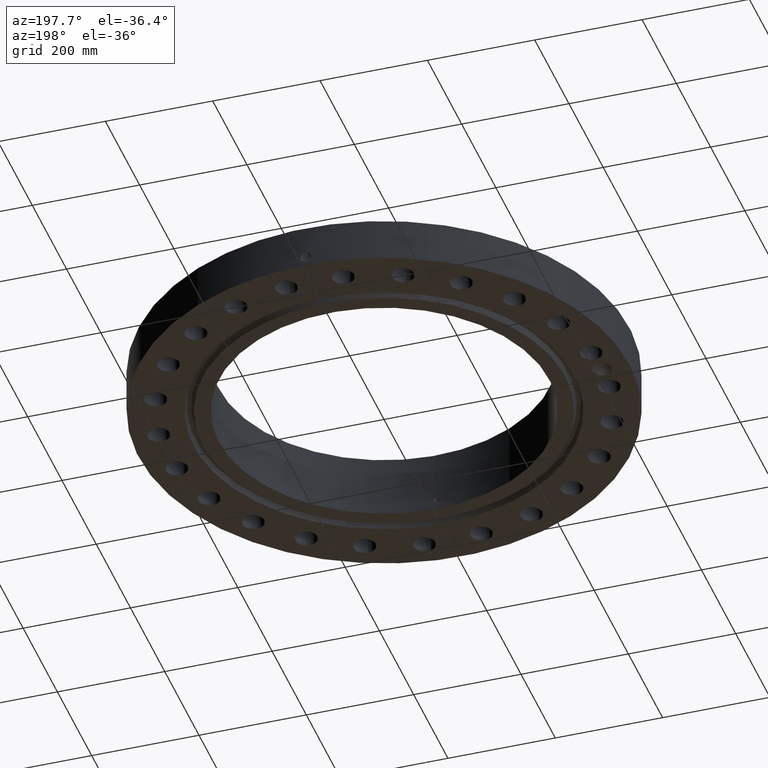
[diagram: clean part render]
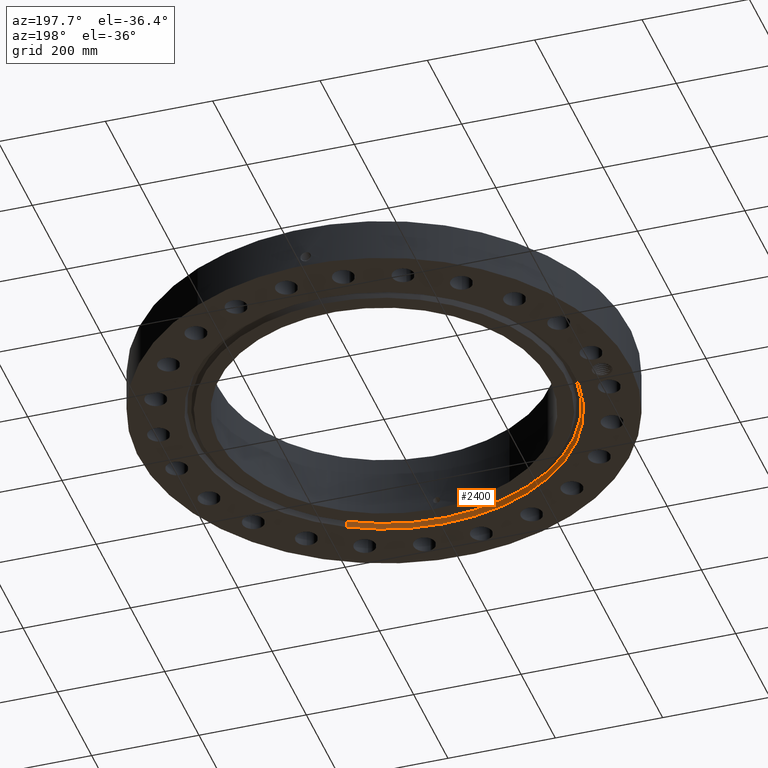
[diagram: same view with one face highlighted and labeled with its STEP entity id]
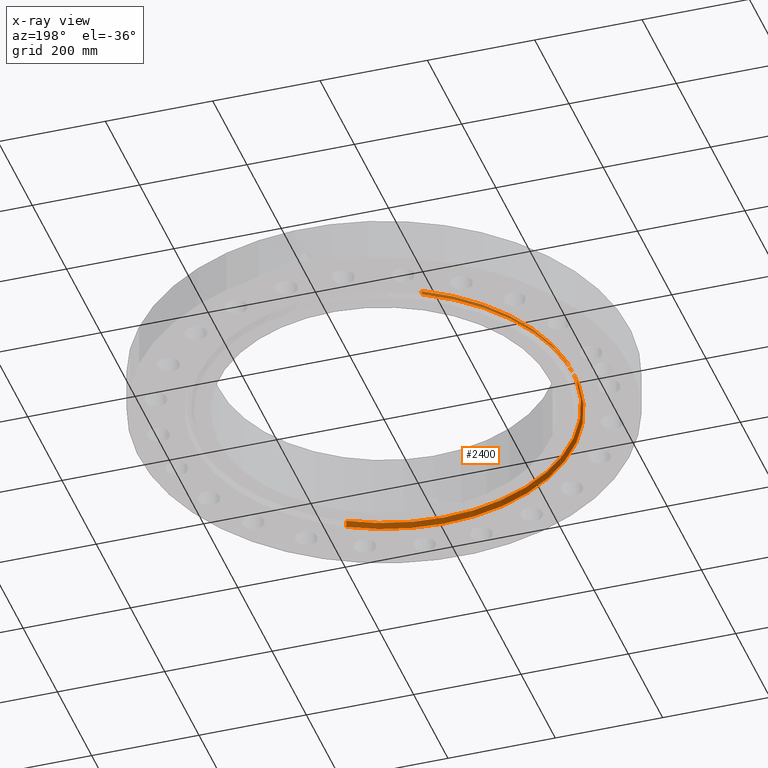
[diagram: x-ray of the same camera — body ghosted, the highlighted face saturated]
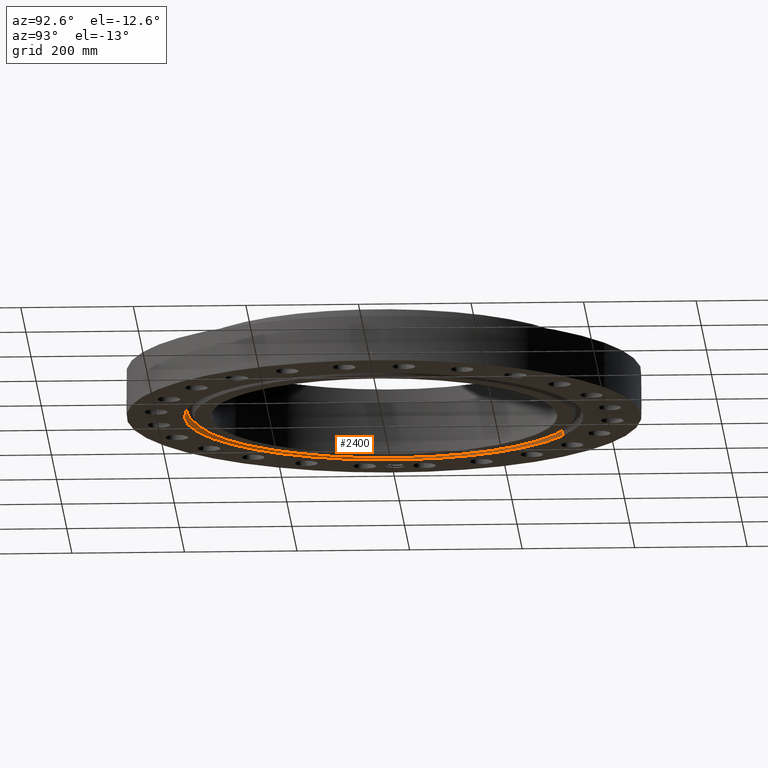
[diagram: same view with one face highlighted and labeled with its STEP entity id]
A machine part, auxiliary view. The second image highlights one B-rep face of the part: STEP entity #2400.
The next image is the same camera in x-ray: the body ghosted, the highlighted face saturated — about 0% of this face is hidden behind the body in this view.
A second angle (auxiliary view) of the same face is appended — the face is thin or edge-on in the first view.
In plain terms, the highlighted conical surface has half-angle 23 deg.
Its self-contained STEP definition (entity closure, byte-faithful):
#656=AXIS2_PLACEMENT_3D('Circle Axis2P3D',#654,#655,$) ;
#2373=AXIS2_PLACEMENT_3D('Cone Axis2P3D',#2370,#2371,#2372) ;
#2384=AXIS2_PLACEMENT_3D('Circle Axis2P3D',#2382,#2383,$) ;
#654=CARTESIAN_POINT('Axis2P3D Location',(-1.1189649382E-015,-2.23792987641E-015,0.)) ;
#658=CARTESIAN_POINT('Vertex',(6.68942454017,-12.2449094861,0.)) ;
#660=CARTESIAN_POINT('Vertex',(-6.68942454017,12.2449094861,0.)) ;
#2370=CARTESIAN_POINT('Axis2P3D Location',(0.,0.,0.399616061096)) ;
#2375=CARTESIAN_POINT('Line Origine',(-6.64876279326,12.1704786576,0.199808030548)) ;
#2379=CARTESIAN_POINT('Vertex',(-6.60810104635,12.0960478292,0.399616061096)) ;
#2382=CARTESIAN_POINT('Axis2P3D Location',(0.,0.,0.399616061096)) ;
#2386=CARTESIAN_POINT('Vertex',(6.60810104635,-12.0960478292,0.399616061096)) ;
#2389=CARTESIAN_POINT('Line Origine',(6.64876279326,-12.1704786576,0.199808030548)) ;
#655=DIRECTION('Axis2P3D Direction',(0.,0.,-0.0393700787402)) ;
#2371=DIRECTION('Axis2P3D Direction',(-0.,-0.,-0.0393700787402)) ;
#2372=DIRECTION('Axis2P3D XDirection',(-0.0188750212049,0.0345504945626,0.)) ;
#2376=DIRECTION('Vector Direction',(-0.00737505833565,0.0134999537303,-0.0362403485611)) ;
#2383=DIRECTION('Axis2P3D Direction',(0.,0.,-0.0393700787402)) ;
#2390=DIRECTION('Vector Direction',(0.00737505833565,-0.0134999537303,-0.0362403485611)) ;
#2377=VECTOR('Line Direction',#2376,0.0393700787402) ;
#2391=VECTOR('Line Direction',#2390,0.0393700787402) ;
#2395=ORIENTED_EDGE('',*,*,#662,.T.) ;
#2396=ORIENTED_EDGE('',*,*,#2381,.T.) ;
#2397=ORIENTED_EDGE('',*,*,#2388,.T.) ;
#2398=ORIENTED_EDGE('',*,*,#2393,.F.) ;
#2400=ADVANCED_FACE('PartBody',(#2399),#2374,.F.) ;
#657=CIRCLE('generated circle',#656,13.9530000001) ;
#2385=CIRCLE('generated circle',#2384,13.783373046) ;
#2374=CONICAL_SURFACE('Cone',#2373,13.783373046,0.401425727959) ;
#662=EDGE_CURVE('',#659,#661,#657,.T.) ;
#2381=EDGE_CURVE('',#661,#2380,#2378,.F.) ;
#2388=EDGE_CURVE('',#2380,#2387,#2385,.F.) ;
#2393=EDGE_CURVE('',#659,#2387,#2392,.F.) ;
#2394=EDGE_LOOP('',(#2395,#2396,#2397,#2398)) ;
#2399=FACE_OUTER_BOUND('',#2394,.T.) ;
#2378=LINE('Line',#2375,#2377) ;
#2392=LINE('Line',#2389,#2391) ;
#659=VERTEX_POINT('',#658) ;
#661=VERTEX_POINT('',#660) ;
#2380=VERTEX_POINT('',#2379) ;
#2387=VERTEX_POINT('',#2386) ;